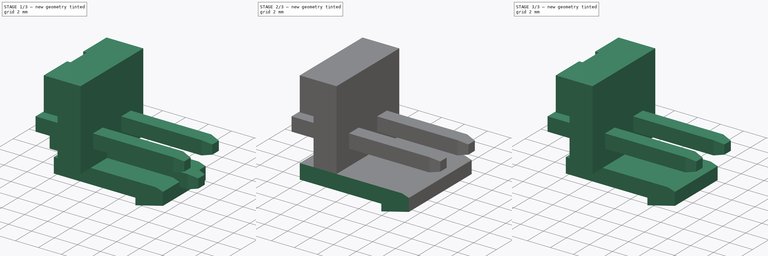
[diagram: build sequence overview — one tinted view per stage of 3, left to right]
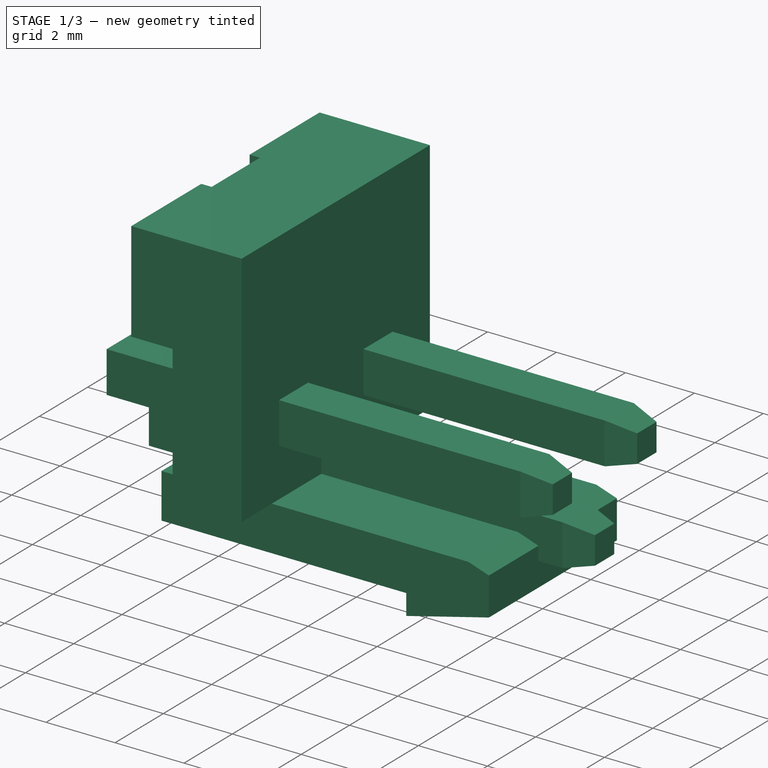
[diagram: stage 1 of 3 — iso view after this stage's code; geometry added in this stage tinted green]
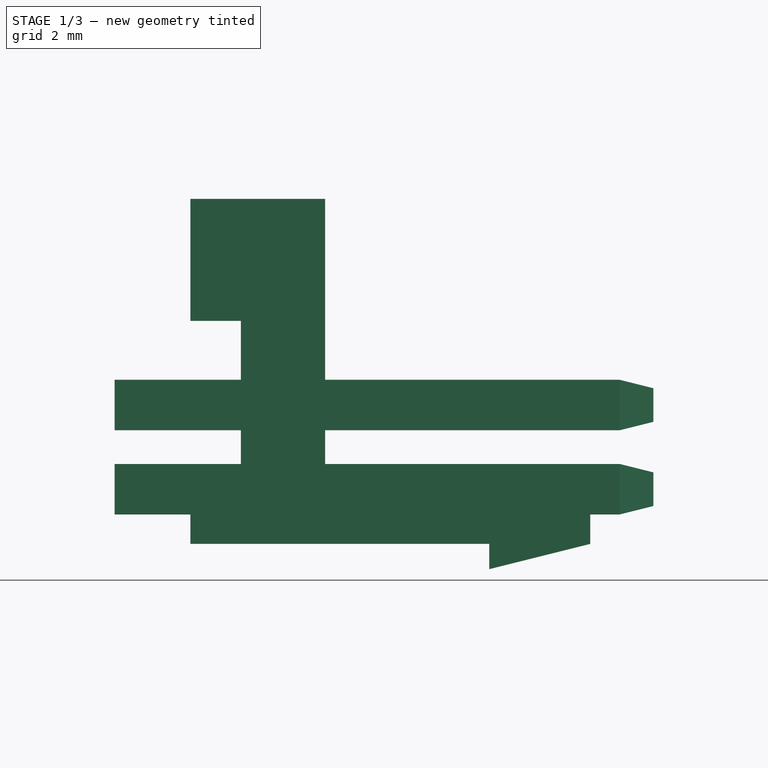
[diagram: stage 1 of 3 — front view after this stage's code; geometry added in this stage tinted green]
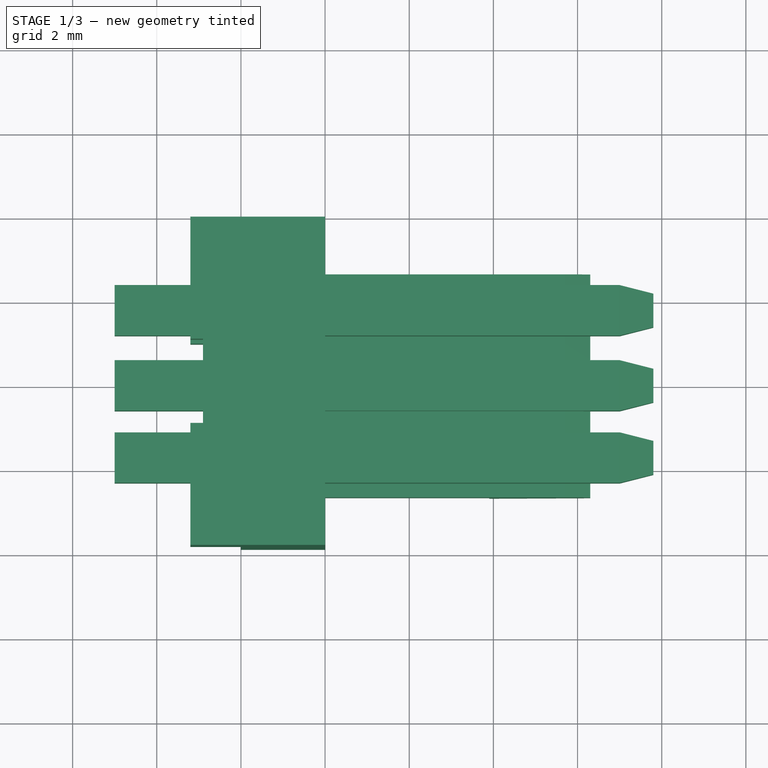
[diagram: stage 1 of 3 — top view after this stage's code; geometry added in this stage tinted green]
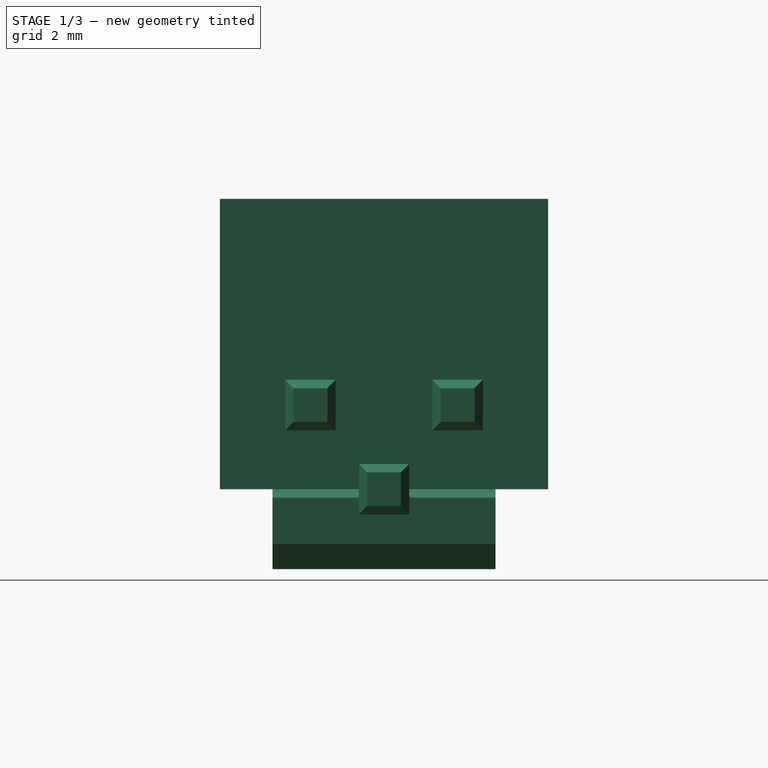
[diagram: stage 1 of 3 — right view after this stage's code; geometry added in this stage tinted green]
FCSTD DOCUMENT  (FreeCAD 0.14R3702 (Git))
Label: hotend-heater-cartridge-connector
License: CC-BY 3.0
LicenseURL: http://creativecommons.org/licenses/by/3.0/
objects: Sketcher::SketchObject×7, PartDesign::Pocket×3, Part::Feature×3, PartDesign::Pad×2, Part::Loft×1, Part::MultiFuse×1, App::DocumentObjectGroup×1, Part::Compound×1
note: 23 computed .brp shape members not serialized (recipe doc carries the construction recipe); baked Part::Feature solids carry a one-line shape summary decoded from their .brp

FEATURE [Sketcher::SketchObject] Sketch004  label="pin-male-base-sketch"
  Placement = pos=(0,0,0) rot=(1,0,0;1.5708rad)
  sketch-geometry (5):
    g0: LineSegment StartX=-5 StartY=0.6 StartZ=0 EndX=7 EndY=0.6 EndZ=0
    g1: LineSegment StartX=7 StartY=0.6 StartZ=0 EndX=7 EndY=-0.6 EndZ=0
    g2: LineSegment StartX=7 StartY=-0.6 StartZ=0 EndX=-5 EndY=-0.6 EndZ=0
    g3: LineSegment StartX=-5 StartY=-0.6 StartZ=0 EndX=-5 EndY=0.6 EndZ=0
    g4: GeomPoint [constr] X=0 Y=0.6 Z=0
  constraints (14):
    c: Coincident(g0,g1)
    c: Coincident(g1,g2)
    c: Coincident(g2,g3)
    c: Coincident(g3,g0)
    c: Horizontal(g0)
    c: Horizontal(g2)
    c: Vertical(g1)
    c: Vertical(g3)
    c: PointOnObject(g4,g0)
    c: PointOnObject(g4,g-2)
    c: DistanceX(g0,g4) = -7
    c: Symmetric(g0,g1,g-1)
    c: DistanceY(g1) = -1.2
    c: DistanceX(g4,g0) = -5
FEATURE [PartDesign::Pad] Pad001  label="pin-male-base"
  Length = 1.2
  Length2 = 100
  Midplane = true
  Placement = pos=(0,0,0) rot=(1,0,0;1.5708rad)
  Sketch = -> Sketch004
  Type = 0
FEATURE [Sketcher::SketchObject] Sketch005
  Placement = pos=(0,0,0) rot=(0.57735,0.57735,0.57735;2.0944rad)
  sketch-geometry (4):
    g0: LineSegment StartX=-0.6 StartY=0.6 StartZ=0 EndX=0.6 EndY=0.6 EndZ=0
    g1: LineSegment StartX=0.6 StartY=0.6 StartZ=0 EndX=0.6 EndY=-0.6 EndZ=0
    g2: LineSegment StartX=0.6 StartY=-0.6 StartZ=0 EndX=-0.6 EndY=-0.6 EndZ=0
    g3: LineSegment StartX=-0.6 StartY=-0.6 StartZ=0 EndX=-0.6 EndY=0.6 EndZ=0
  constraints (11):
    c: Coincident(g0,g1)
    c: Coincident(g1,g2)
    c: Coincident(g2,g3)
    c: Coincident(g3,g0)
    c: Horizontal(g0)
    c: Horizontal(g2)
    c: Vertical(g1)
    c: Vertical(g3)
    c: Symmetric(g0,g1,g-1)
    c: Equal(g3,g0)
    c: DistanceX(g0) = 1.2
FEATURE [Sketcher::SketchObject] Sketch006
  Placement = pos=(0.8,0,0) rot=(0.57735,0.57735,0.57735;2.0944rad)
  sketch-geometry (4):
    g0: LineSegment StartX=-0.4 StartY=0.4 StartZ=0 EndX=0.4 EndY=0.4 EndZ=0
    g1: LineSegment StartX=0.4 StartY=0.4 StartZ=0 EndX=0.4 EndY=-0.4 EndZ=0
    g2: LineSegment StartX=0.4 StartY=-0.4 StartZ=0 EndX=-0.4 EndY=-0.4 EndZ=0
    g3: LineSegment StartX=-0.4 StartY=-0.4 StartZ=0 EndX=-0.4 EndY=0.4 EndZ=0
  constraints (11):
    c: Coincident(g0,g1)
    c: Coincident(g1,g2)
    c: Coincident(g2,g3)
    c: Coincident(g3,g0)
    c: Horizontal(g0)
    c: Horizontal(g2)
    c: Vertical(g1)
    c: Vertical(g3)
    c: Symmetric(g0,g1,g-1)
    c: Equal(g3,g0)
    c: DistanceX(g0) = 0.8
FEATURE [Part::Loft] Loft
  Closed = false
  Placement = pos=(7,0,0) rot=(0,0,1;0rad)
  Ruled = false
  Sections = -> [Sketch005,Sketch006]
  Solid = true
FEATURE [App::DocumentObjectGroup] Group  label="connector-src"
  Group = -> [Pad,Pocket,Pocket001,Pocket002,Fusion]
FEATURE [Part::Feature] Pocket003  label="connector-body"
  Placement = pos=(0,0,0) rot=(1,0,0;1.5708rad)
  shape: bbox 9.5 x 7.8 x 8.8 mm, 31 faces (baked)
FEATURE [Part::Feature] Fusion001  label="male-pin-002"
  Placement = pos=(0,1.75,2) rot=(0,0,1;0rad)
  shape: bbox 12.8 x 1.2 x 1.2 mm, 10 faces (baked)
FEATURE [Part::Feature] Fusion001001  label="male-pin-003"
  Placement = pos=(0,-1.75,2) rot=(0,0,1;0rad)
  shape: bbox 12.8 x 1.2 x 1.2 mm, 10 faces (baked)
FEATURE [Part::Compound] Compound  label="heater-cartridge-connector-final"
  Links = -> [Pocket003,Fusion001,Fusion001001]
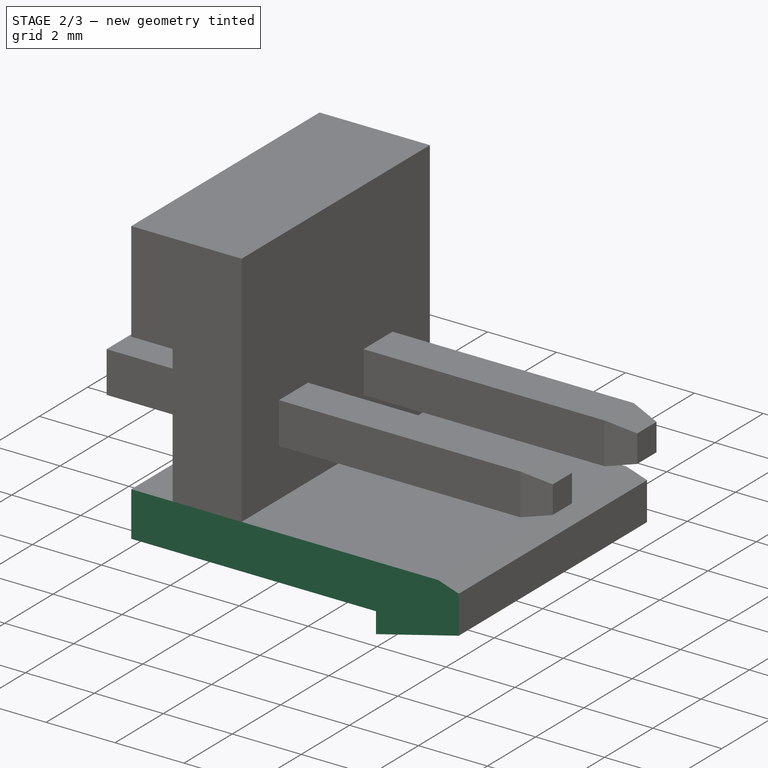
[diagram: stage 2 of 3 — iso view after this stage's code; geometry added in this stage tinted green]
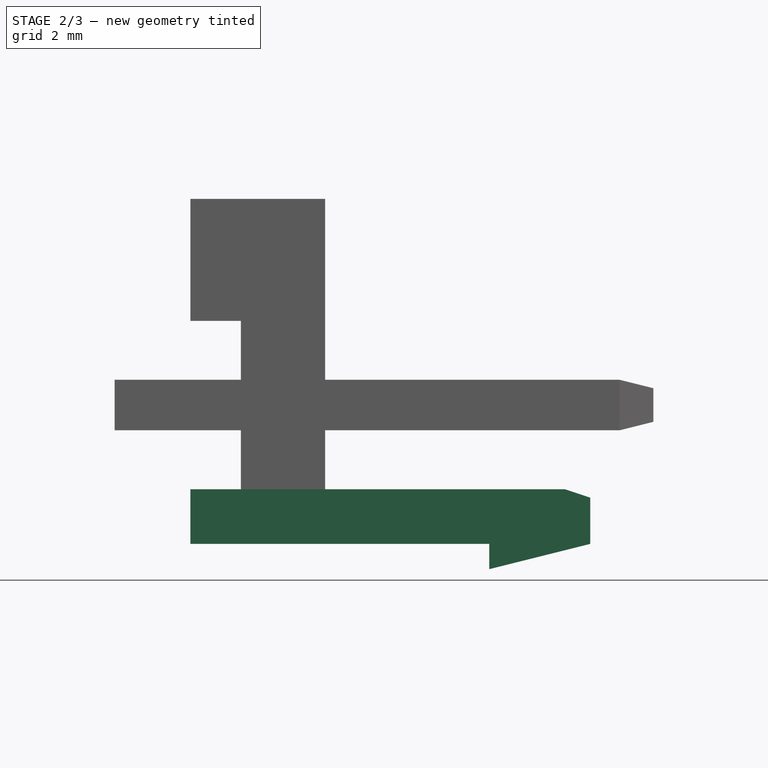
[diagram: stage 2 of 3 — front view after this stage's code; geometry added in this stage tinted green]
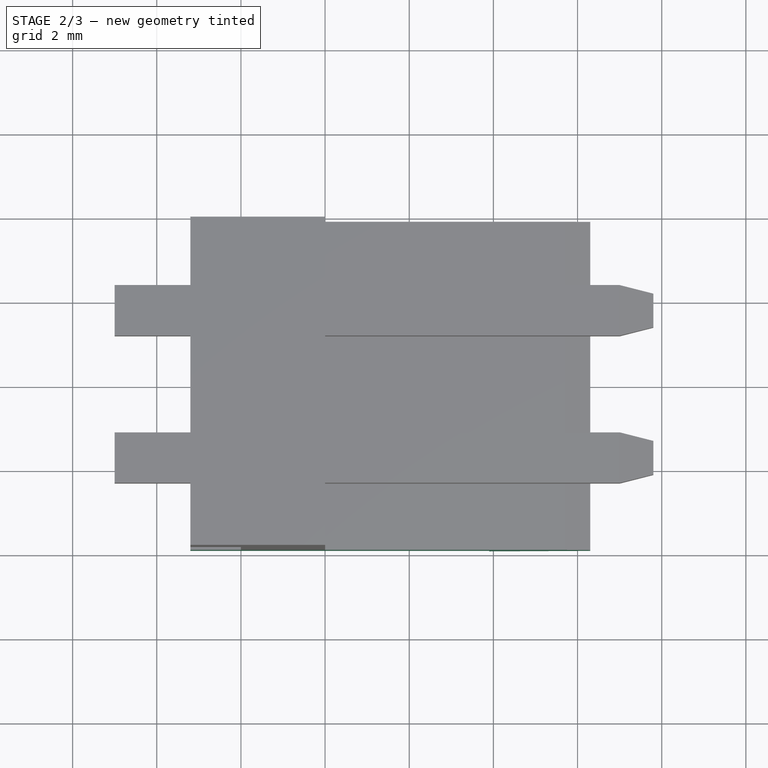
[diagram: stage 2 of 3 — top view after this stage's code; geometry added in this stage tinted green]
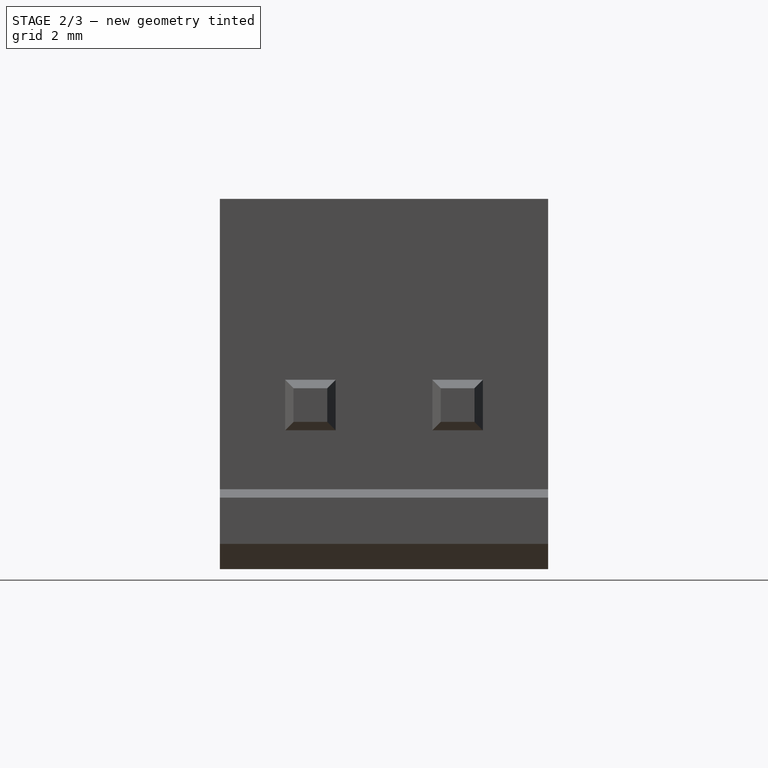
[diagram: stage 2 of 3 — right view after this stage's code; geometry added in this stage tinted green]
FEATURE [Sketcher::SketchObject] Sketch  label="main-body-sketch"
  Placement = pos=(0,0,0) rot=(1,0,0;1.5708rad)
  sketch-geometry (13):
    g0: LineSegment StartX=-3.2 StartY=4 StartZ=0 EndX=-3.2 EndY=6.9 EndZ=0
    g1: LineSegment StartX=-3.2 StartY=6.9 StartZ=0 EndX=0 EndY=6.9 EndZ=0
    g2: LineSegment StartX=0 StartY=6.9 StartZ=0 EndX=0 EndY=0 EndZ=0
    g3: LineSegment StartX=0 StartY=0 StartZ=0 EndX=5.7 EndY=0 EndZ=0
    g4: LineSegment StartX=5.7 StartY=0 StartZ=0 EndX=6.3 EndY=-0.2 EndZ=0
    g5: LineSegment StartX=6.3 StartY=-0.2 StartZ=0 EndX=6.3 EndY=-1.3 EndZ=0
    g6: LineSegment StartX=6.3 StartY=-1.3 StartZ=0 EndX=3.9 EndY=-1.9 EndZ=0
    g7: LineSegment StartX=3.9 StartY=-1.9 StartZ=0 EndX=3.9 EndY=-1.3 EndZ=0
    g8: LineSegment StartX=3.9 StartY=-1.3 StartZ=0 EndX=-3.2 EndY=-1.3 EndZ=0
    g9: LineSegment StartX=-3.2 StartY=-1.3 StartZ=0 EndX=-3.2 EndY=0 EndZ=0
    g10: LineSegment StartX=-3.2 StartY=0 StartZ=0 EndX=-2 EndY=0 EndZ=0
    g11: LineSegment StartX=-2 StartY=0 StartZ=0 EndX=-2 EndY=4 EndZ=0
    g12: LineSegment StartX=-2 StartY=4 StartZ=0 EndX=-3.2 EndY=4 EndZ=0
  constraints (38):
    c: Coincident(g0,g1)
    c: Horizontal(g1)
    c: Coincident(g1,g2)
    c: Vertical(g2)
    c: Coincident(g2,g3)
    c: Horizontal(g3)
    c: Coincident(g3,g4)
    c: Coincident(g4,g5)
    c: Vertical(g5)
    c: Coincident(g5,g6)
    c: Coincident(g6,g7)
    c: Coincident(g7,g8)
    c: Horizontal(g8)
    c: Coincident(g8,g9)
    c: Vertical(g9)
    c: Coincident(g9,g10)
    c: Horizontal(g10)
    c: Coincident(g10,g11)
    c: Vertical(g11)
    c: Coincident(g11,g12)
    c: Coincident(g12,g0)
    c: Horizontal(g12)
    c: Vertical(g0)
    c: Vertical(g7)
    c: Coincident(g2,g-1)
    c: DistanceY(g8,g0) = 8.2
    c: PointOnObject(g10,g-1)
    c: DistanceY(g9) = 1.3
    c: DistanceY(g3,g6) = -1.9
    c: DistanceX(g7,g5) = 2.4
    c: DistanceY(g5) = -1.1
    c: DistanceX(g3,g4) = 0.6
    c: PointOnObject(g5,g8)
    c: DistanceX(g8,g5) = 9.5
    c: DistanceX(g-1,g10) = -2
    c: DistanceX(g10) = 1.2
    c: PointOnObject(g0,g9)
    c: DistanceY(g0) = 2.9
FEATURE [PartDesign::Pad] Pad  label="main-body-sketch001"
  Length = 7.8
  Length2 = 100
  Midplane = true
  Placement = pos=(0,0,0) rot=(1,0,0;1.5708rad)
  Sketch = -> Sketch
  Type = 0
FEATURE [Part::MultiFuse] Fusion  label="male-pin-1"
  Placement = pos=(0,1.75,2) rot=(0,0,1;0rad)
  Shapes = -> [Pad001,Loft]
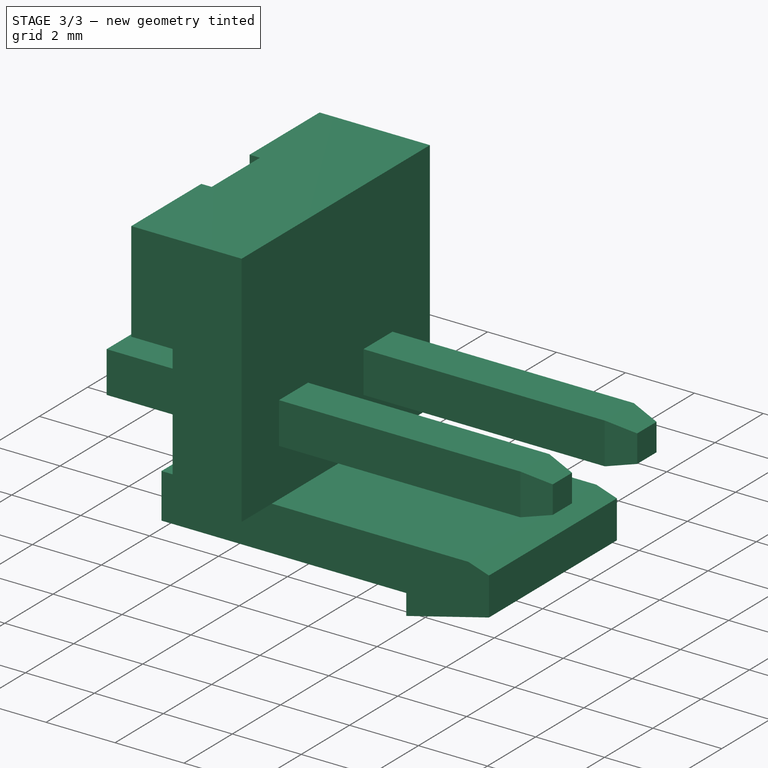
[diagram: stage 3 of 3 — iso view after this stage's code; geometry added in this stage tinted green]
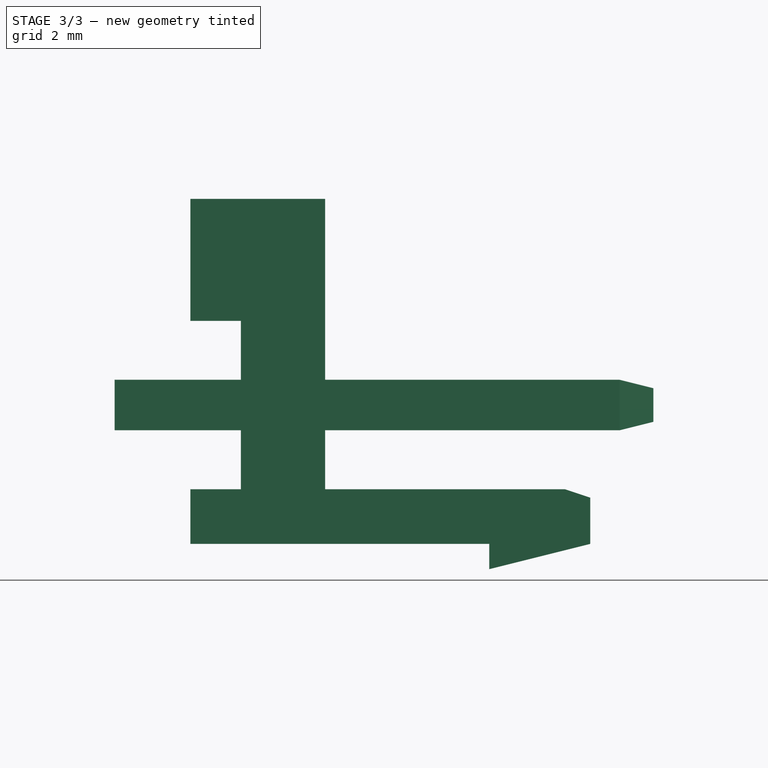
[diagram: stage 3 of 3 — front view after this stage's code; geometry added in this stage tinted green]
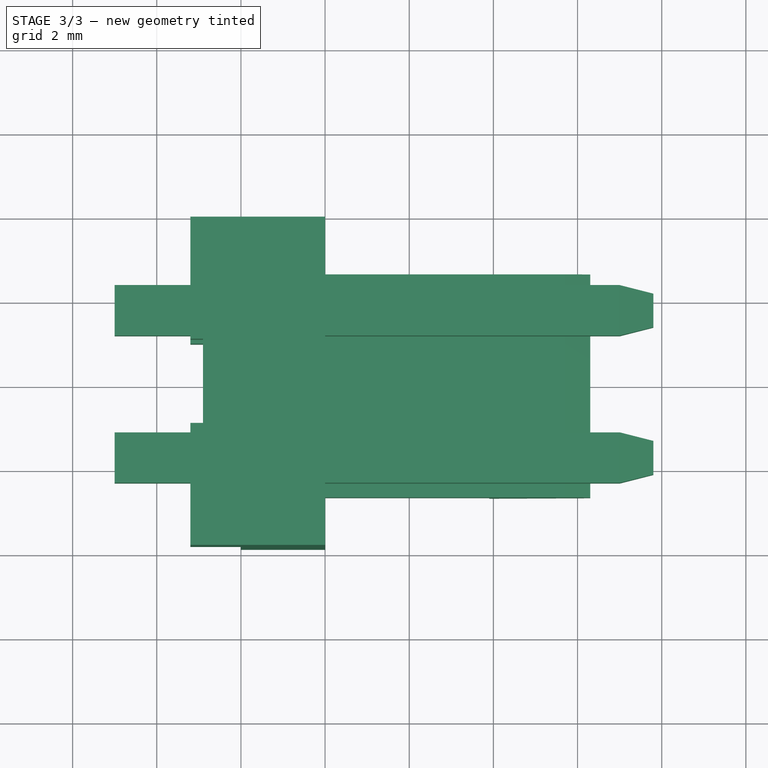
[diagram: stage 3 of 3 — top view after this stage's code; geometry added in this stage tinted green]
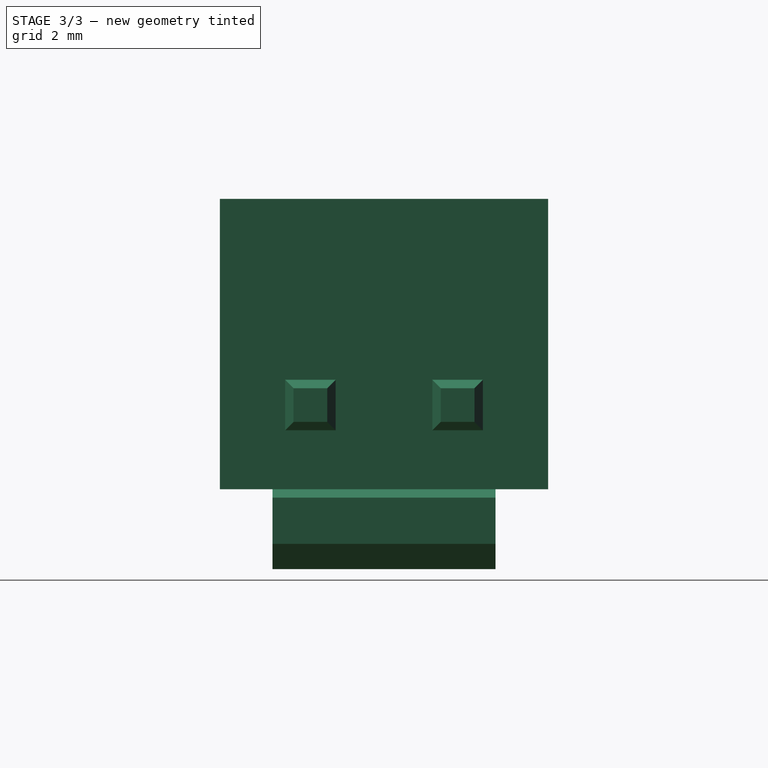
[diagram: stage 3 of 3 — right view after this stage's code; geometry added in this stage tinted green]
FEATURE [Sketcher::SketchObject] Sketch001  label="cutout-1-sketch"
  ExternalGeometry = -> [Pad]
  Placement = pos=(-3.2,0,0) rot=(0.707107,0,-0.707107;3.14159rad)
  Support = -> Pad [Face10]
  sketch-geometry (8):
    g0: LineSegment StartX=0 StartY=3.9 StartZ=0 EndX=2.4 EndY=3.9 EndZ=0
    g1: LineSegment StartX=2.4 StartY=3.9 StartZ=0 EndX=2.4 EndY=2.65 EndZ=0
    g2: LineSegment StartX=2.4 StartY=2.65 StartZ=0 EndX=0 EndY=2.65 EndZ=0
    g3: LineSegment StartX=0 StartY=2.65 StartZ=0 EndX=0 EndY=3.9 EndZ=0
    g4: LineSegment StartX=0 StartY=-2.65 StartZ=0 EndX=2.4 EndY=-2.65 EndZ=0
    g5: LineSegment StartX=2.4 StartY=-2.65 StartZ=0 EndX=2.4 EndY=-3.9 EndZ=0
    g6: LineSegment StartX=2.4 StartY=-3.9 StartZ=0 EndX=0 EndY=-3.9 EndZ=0
    g7: LineSegment StartX=0 StartY=-3.9 StartZ=0 EndX=0 EndY=-2.65 EndZ=0
  constraints (22):
    c: Coincident(g0,g1)
    c: Coincident(g1,g2)
    c: Coincident(g2,g3)
    c: Coincident(g3,g0)
    c: Horizontal(g0)
    c: Horizontal(g2)
    c: Vertical(g1)
    c: Vertical(g3)
    c: Coincident(g0,g-4)
    c: Coincident(g4,g5)
    c: Coincident(g5,g6)
    c: Coincident(g6,g7)
    c: Coincident(g7,g4)
    c: Horizontal(g4)
    c: Horizontal(g6)
    c: Vertical(g5)
    c: Vertical(g7)
    c: Symmetric(g4,g2,g-1)
    c: Symmetric(g6,g0,g-1)
    c: Symmetric(g4,g1,g-1)
    c: DistanceX(g-7,g0) = 0.5
    c: DistanceY(g1,g4) = -5.3
FEATURE [PartDesign::Pocket] Pocket  label="cutout-1"
  Length = 5
  Placement = pos=(0,0,0) rot=(1,0,0;1.5708rad)
  Sketch = -> Sketch001
  Type = 1
FEATURE [Sketcher::SketchObject] Sketch002  label="cutout-2-sketch"
  ExternalGeometry = -> [Pocket]
  Placement = pos=(-3.2,0,0) rot=(0.707107,0,-0.707107;3.14159rad)
  Support = -> Pocket [Face1]
  sketch-geometry (12):
    g0: LineSegment StartX=-5.4 StartY=2.7 StartZ=0 EndX=-4 EndY=2.7 EndZ=0
    g1: LineSegment StartX=-4 StartY=2.7 StartZ=0 EndX=-4 EndY=4.9 EndZ=0
    g2: LineSegment StartX=-4 StartY=4.9 StartZ=0 EndX=0 EndY=4.9 EndZ=0
    g3: LineSegment StartX=0 StartY=4.9 StartZ=0 EndX=0 EndY=1 EndZ=0
    g4: LineSegment StartX=0 StartY=1 StartZ=0 EndX=1.3 EndY=1 EndZ=0
    g5: LineSegment StartX=1.3 StartY=1 StartZ=0 EndX=1.3 EndY=-1 EndZ=0
    g6: LineSegment StartX=1.3 StartY=-1 StartZ=0 EndX=0 EndY=-1 EndZ=0
    g7: LineSegment StartX=0 StartY=-1 StartZ=0 EndX=0 EndY=-4.9 EndZ=0
    g8: LineSegment StartX=0 StartY=-4.9 StartZ=0 EndX=-4 EndY=-4.9 EndZ=0
    g9: LineSegment StartX=-4 StartY=-4.9 StartZ=0 EndX=-4 EndY=-2.7 EndZ=0
    g10: LineSegment StartX=-4 StartY=-2.7 StartZ=0 EndX=-5.4 EndY=-2.7 EndZ=0
    g11: LineSegment StartX=-5.4 StartY=-2.7 StartZ=0 EndX=-5.4 EndY=2.7 EndZ=0
  constraints (35):
    c: Horizontal(g0)
    c: Coincident(g0,g1)
    c: Vertical(g1)
    c: Coincident(g1,g2)
    c: Horizontal(g2)
    c: Coincident(g2,g3)
    c: Vertical(g3)
    c: Coincident(g3,g4)
    c: Horizontal(g4)
    c: Coincident(g4,g5)
    c: Vertical(g5)
    c: Coincident(g5,g6)
    c: Horizontal(g6)
    c: Coincident(g6,g7)
    c: Vertical(g7)
    c: Coincident(g7,g8)
    c: Horizontal(g8)
    c: Coincident(g8,g9)
    c: Vertical(g9)
    c: Coincident(g9,g10)
    c: Horizontal(g10)
    c: Coincident(g10,g11)
    c: Coincident(g11,g0)
    c: Vertical(g11)
    c: PointOnObject(g-4,g1)
    c: PointOnObject(g-5,g3)
    c: DistanceX(g0,g-4) = -1.5
    c: DistanceY(g0,g-4) = 1.2
    c: DistanceY(g-4,g1) = 1
    c: PointOnObject(g4,g-6)
    c: Symmetric(g4,g5,g-1)
    c: DistanceY(g5,g4) = 2
    c: PointOnObject(g6,g-5)
    c: Symmetric(g7,g2,g-1)
    c: Symmetric(g9,g0,g-1)
FEATURE [PartDesign::Pocket] Pocket001  label="cutout-2"
  Length = 1.2
  Placement = pos=(0,0,0) rot=(1,0,0;1.5708rad)
  Sketch = -> Sketch002
  Type = 0
FEATURE [Sketcher::SketchObject] Sketch003  label="cutout-3-sketch"
  ExternalGeometry = -> [Pocket001]
  Placement = pos=(0,0,6.9) rot=(0,0,1;3.14159rad)
  Support = -> Pocket001 [Face7]
  sketch-geometry (4):
    g0: LineSegment StartX=2.9 StartY=1 StartZ=0 EndX=3.2 EndY=1 EndZ=0
    g1: LineSegment StartX=3.2 StartY=1 StartZ=0 EndX=3.2 EndY=-1 EndZ=0
    g2: LineSegment StartX=3.2 StartY=-1 StartZ=0 EndX=2.9 EndY=-1 EndZ=0
    g3: LineSegment StartX=2.9 StartY=-1 StartZ=0 EndX=2.9 EndY=1 EndZ=0
  constraints (12):
    c: Coincident(g0,g1)
    c: Coincident(g1,g2)
    c: Coincident(g2,g3)
    c: Coincident(g3,g0)
    c: Horizontal(g0)
    c: Horizontal(g2)
    c: Vertical(g1)
    c: Vertical(g3)
    c: Symmetric(g1,g0,g-1)
    c: PointOnObject(g0,g-3)
    c: DistanceX(g0) = 0.3
    c: DistanceY(g3) = 2
FEATURE [PartDesign::Pocket] Pocket002  label="cutout-3"
  Length = 5
  Placement = pos=(0,0,0) rot=(1,0,0;1.5708rad)
  Sketch = -> Sketch003
  Type = 1
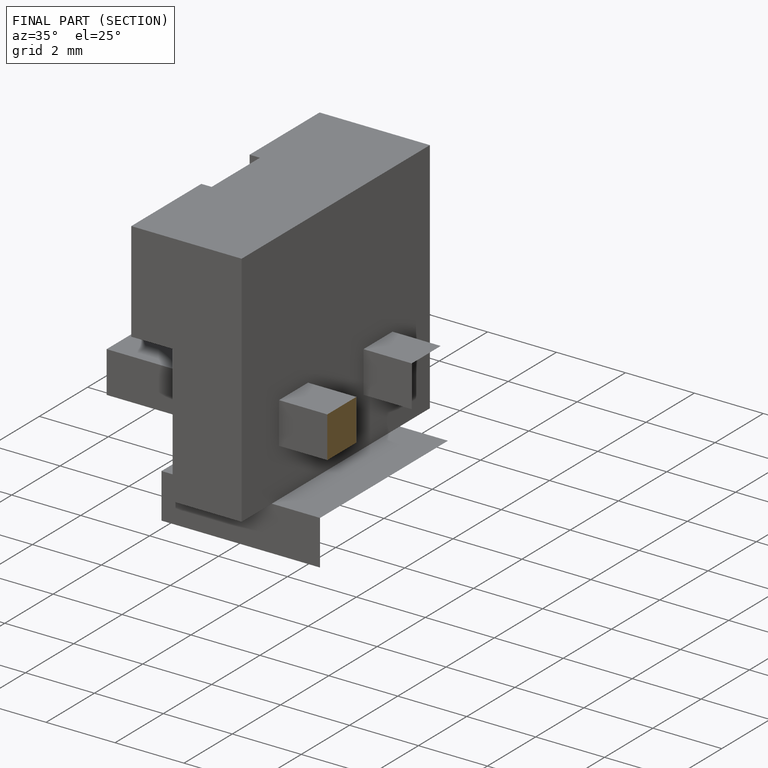
[diagram: finished part — half-section view (interior)]
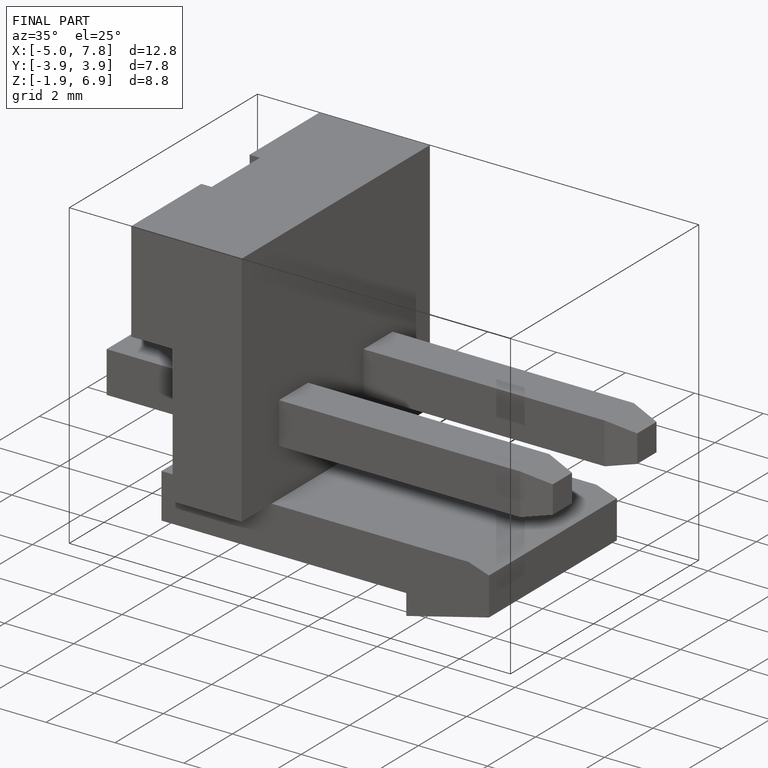
[diagram: finished part — iso view with bounding-box wireframe]
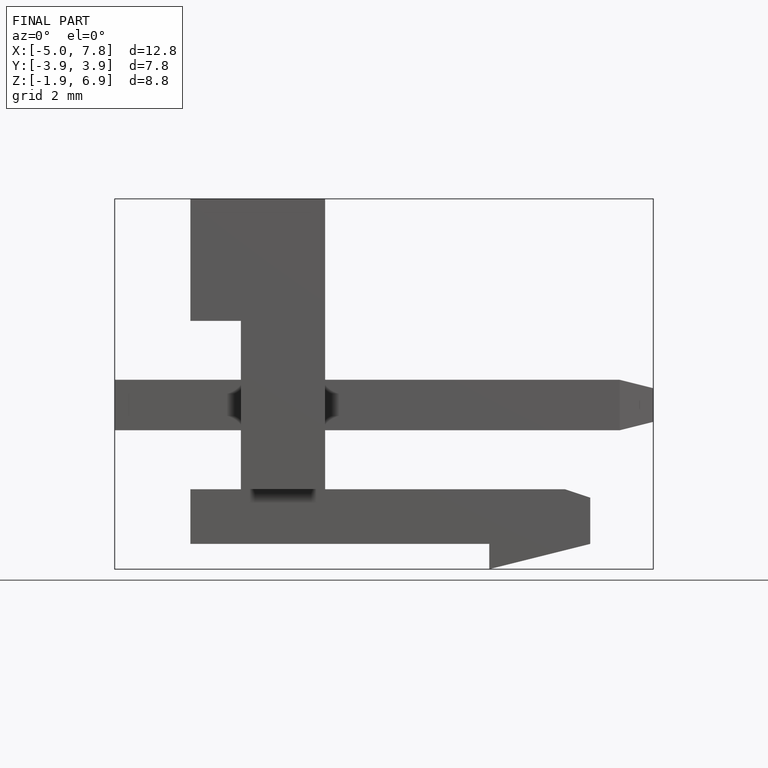
[diagram: finished part — front view with bounding-box wireframe]
